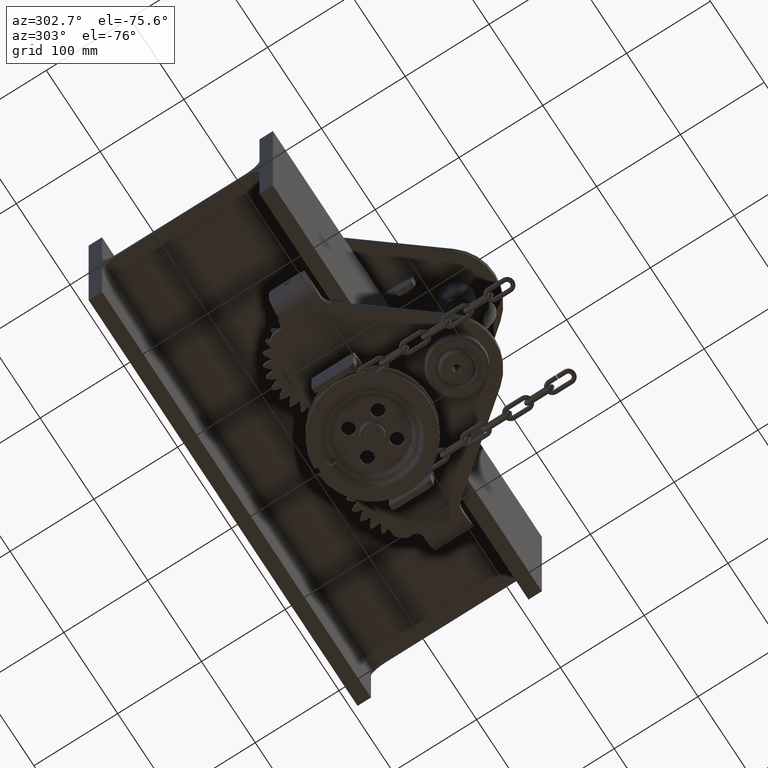
[diagram: clean part render]
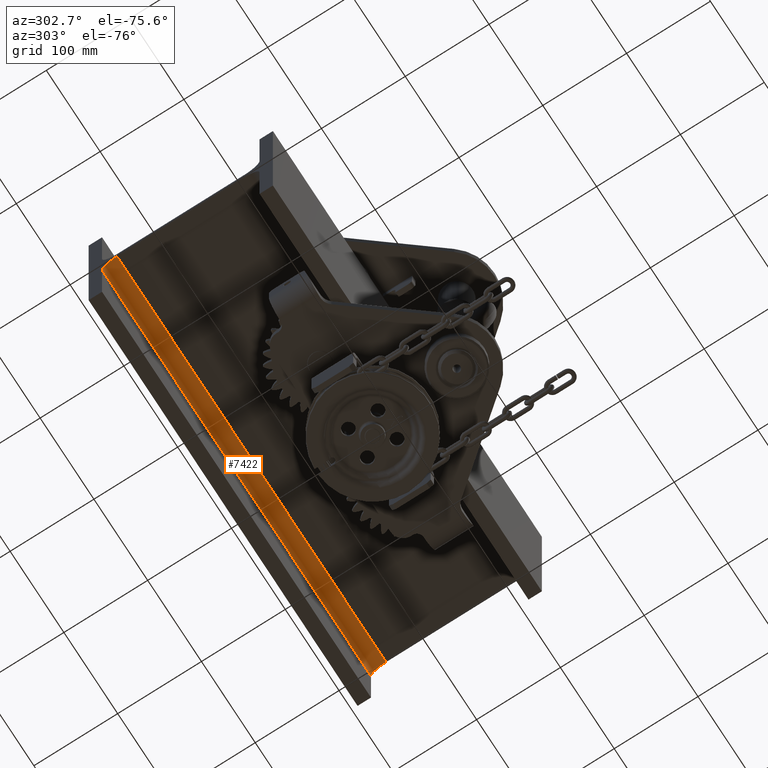
[diagram: same view with one face highlighted and labeled with its STEP entity id]
A machine part, auxiliary view. The second image highlights one B-rep face of the part: STEP entity #7422.
In plain terms, the highlighted cylindrical surface (edge-blend (fillet) strip) has radius 18 mm, axis along (1, 0, 0).
Its self-contained STEP definition (entity closure, byte-faithful):
#1692 = EDGE_CURVE ( 'NONE', #18609, #74782, #4271, .T. ) ;
#3269 = CARTESIAN_POINT ( 'NONE',  ( -250.0000000000000600, 93.99999999999997200, -22.74999999999997500 ) ) ;
#4271 = LINE ( 'NONE', #3269, #96030 ) ;
#6211 = DIRECTION ( 'NONE',  ( 1.000000000000000000, 0.0000000000000000000, 7.703719777548941700E-034 ) ) ;
#7422 = ADVANCED_FACE ( 'NONE', ( #95403 ), #48162, .F. ) ;
#13727 = CARTESIAN_POINT ( 'NONE',  ( -250.0000000000000600, 75.99999999999995700, -4.750000000000007100 ) ) ;
#18351 = EDGE_LOOP ( 'NONE', ( #62457, #37348, #76066, #56576 ) ) ;
#18609 = VERTEX_POINT ( 'NONE', #104578 ) ;
#22911 = CIRCLE ( 'NONE', #59920, 17.99999999999997200 ) ;
#28836 = CARTESIAN_POINT ( 'NONE',  ( 250.0000000000000600, 75.99999999999995700, -4.750000000000007100 ) ) ;
#37348 = ORIENTED_EDGE ( 'NONE', *, *, #97722, .F. ) ;
#39241 = CARTESIAN_POINT ( 'NONE',  ( 250.0000000000000600, 75.99999999999995700, -22.74999999999998200 ) ) ;
#42153 = VERTEX_POINT ( 'NONE', #43123 ) ;
#43123 = CARTESIAN_POINT ( 'NONE',  ( -250.0000000000000600, 75.99999999999995700, -4.750000000000007100 ) ) ;
#45165 = EDGE_CURVE ( 'NONE', #18609, #42153, #22911, .T. ) ;
#45780 = DIRECTION ( 'NONE',  ( 0.0000000000000000000, 0.0000000000000000000, -1.000000000000000000 ) ) ;
#48162 = CYLINDRICAL_SURFACE ( 'NONE', #61652, 17.99999999999997200 ) ;
#52821 = DIRECTION ( 'NONE',  ( 1.000000000000000000, 0.0000000000000000000, 7.703719777548941700E-034 ) ) ;
#56511 = CIRCLE ( 'NONE', #95022, 17.99999999999997200 ) ;
#56576 = ORIENTED_EDGE ( 'NONE', *, *, #1692, .T. ) ;
#59920 = AXIS2_PLACEMENT_3D ( 'NONE', #77829, #52821, #87278 ) ;
#61286 = DIRECTION ( 'NONE',  ( 1.000000000000000000, 0.0000000000000000000, 7.703719777548941700E-034 ) ) ;
#61652 = AXIS2_PLACEMENT_3D ( 'NONE', #68285, #61286, #45780 ) ;
#62457 = ORIENTED_EDGE ( 'NONE', *, *, #93741, .T. ) ;
#67054 = VECTOR ( 'NONE', #73577, 1000.000000000000000 ) ;
#68285 = CARTESIAN_POINT ( 'NONE',  ( -250.0000000000000600, 75.99999999999995700, -22.74999999999998200 ) ) ;
#73577 = DIRECTION ( 'NONE',  ( 1.000000000000000000, 0.0000000000000000000, 7.703719777548941700E-034 ) ) ;
#74782 = VERTEX_POINT ( 'NONE', #100296 ) ;
#76066 = ORIENTED_EDGE ( 'NONE', *, *, #45165, .F. ) ;
#77829 = CARTESIAN_POINT ( 'NONE',  ( -250.0000000000000600, 75.99999999999995700, -22.74999999999998200 ) ) ;
#78434 = DIRECTION ( 'NONE',  ( 1.000000000000000000, 0.0000000000000000000, 7.703719777548941700E-034 ) ) ;
#87278 = DIRECTION ( 'NONE',  ( 0.0000000000000000000, 0.0000000000000000000, -1.000000000000000000 ) ) ;
#93741 = EDGE_CURVE ( 'NONE', #74782, #94065, #56511, .T. ) ;
#94065 = VERTEX_POINT ( 'NONE', #28836 ) ;
#95022 = AXIS2_PLACEMENT_3D ( 'NONE', #39241, #6211, #106968 ) ;
#95403 = FACE_OUTER_BOUND ( 'NONE', #18351, .T. ) ;
#96030 = VECTOR ( 'NONE', #78434, 1000.000000000000000 ) ;
#97722 = EDGE_CURVE ( 'NONE', #42153, #94065, #104891, .T. ) ;
#100296 = CARTESIAN_POINT ( 'NONE',  ( 250.0000000000000600, 93.99999999999997200, -22.74999999999997500 ) ) ;
#104578 = CARTESIAN_POINT ( 'NONE',  ( -250.0000000000000600, 93.99999999999997200, -22.74999999999997500 ) ) ;
#104891 = LINE ( 'NONE', #13727, #67054 ) ;
#106968 = DIRECTION ( 'NONE',  ( 0.0000000000000000000, 0.0000000000000000000, -1.000000000000000000 ) ) ;